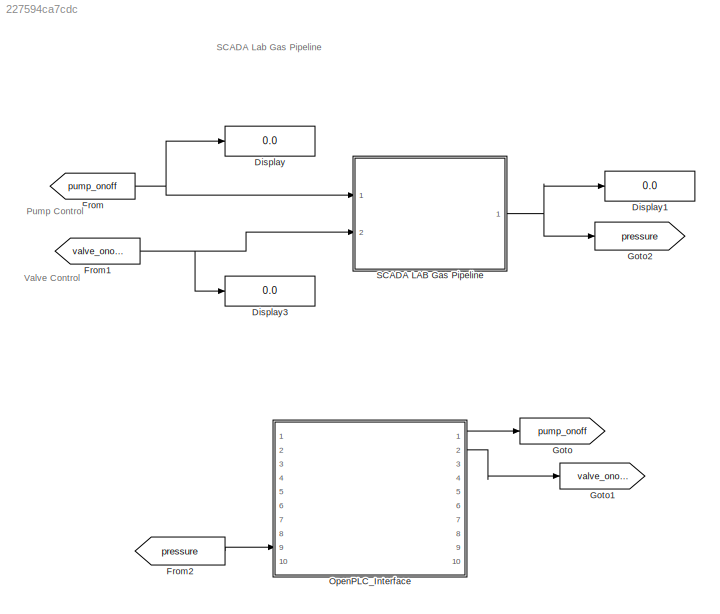
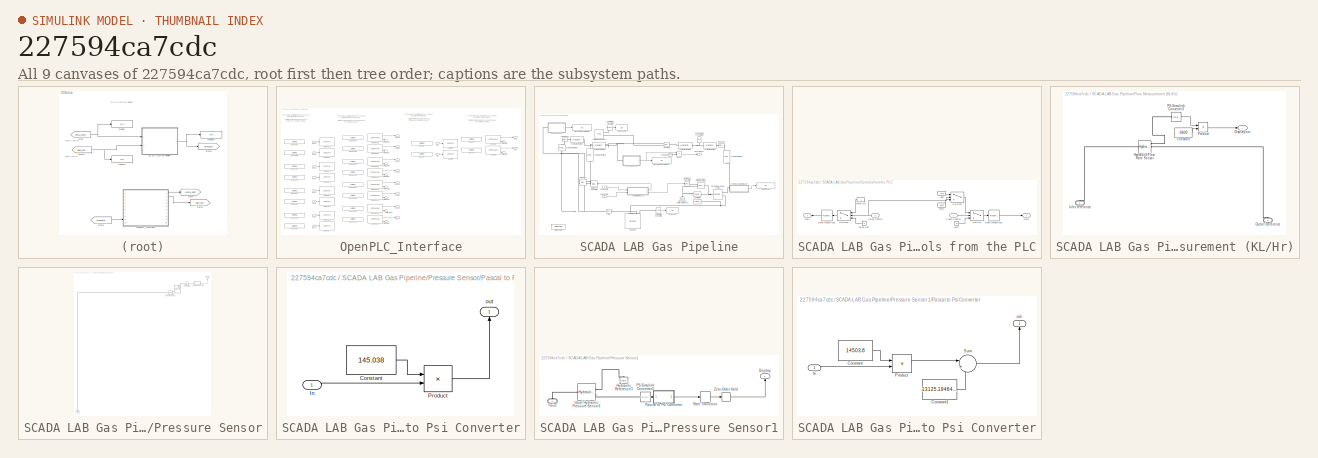
[diagram: thumbnail index - all 9 canvases of the model, root first then tree order]
MODEL slx_227594ca7cdc
KIND model
CONFIG AbsTol = auto
CONFIG EnableMultiTasking = on
CONFIG FixedStep = auto
CONFIG MaxStep = auto
CONFIG MinStep = auto
CONFIG RelTol = 1e-3
CONFIG SampleTimeConstraint = Unconstrained
CONFIG Solver = FixedStepAuto
CONFIG SolverName = FixedStepAuto
CONFIG StartTime = 0.0
CONFIG StopTime = inf
WORKSPACE source: mxarray member
WORKSPACE PLC_IP_Address = 'localhost'
BLOCK [Display] Display
  Decimation = 1
  Ports = [1]
BLOCK [Display] Display1
  Decimation = 1
  Ports = [1]
BLOCK [Display] Display3
  Decimation = 1
  Ports = [1]
BLOCK [From] From
  GotoTag = pump_onoff
BLOCK [From] From1
  GotoTag = valve_onoff
BLOCK [From] From2
  GotoTag = pressure
BLOCK [Goto] Goto
  GotoTag = pump_onoff
BLOCK [Goto] Goto1
  GotoTag = valve_onoff
BLOCK [Goto] Goto2
  GotoTag = pressure
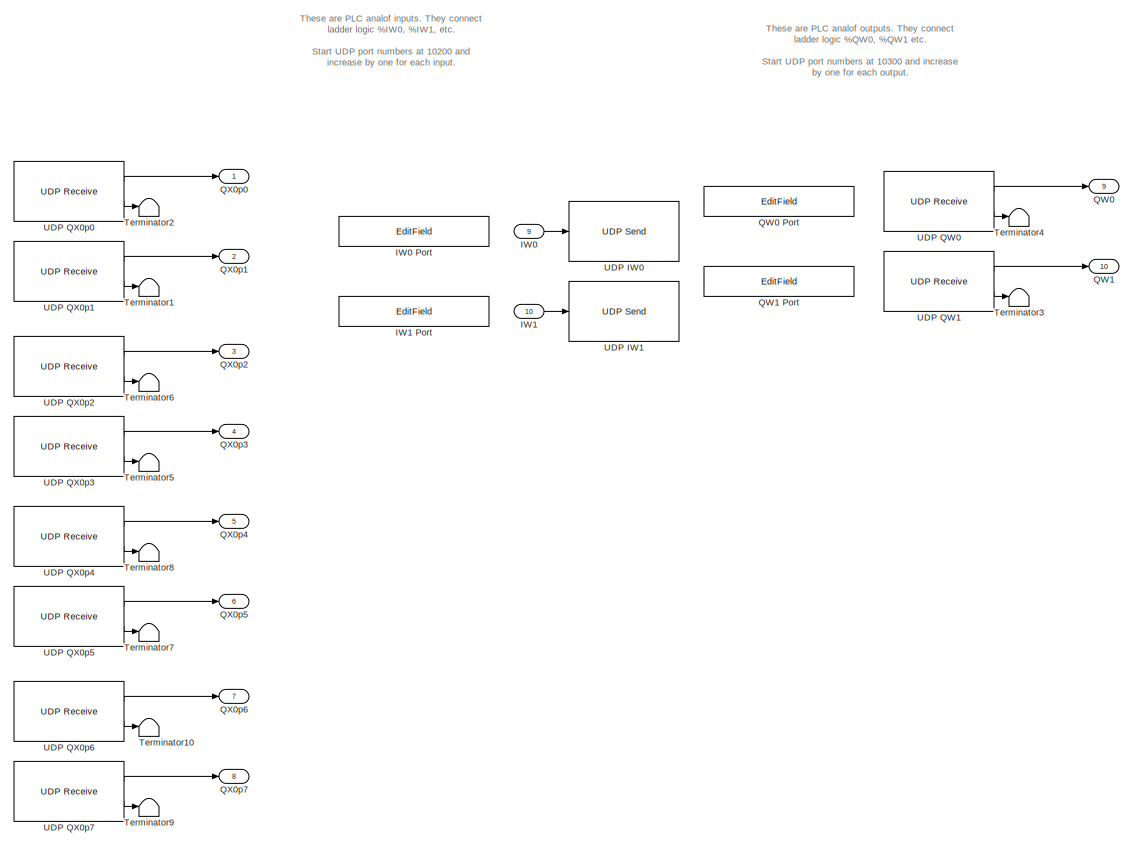
[diagram: OpenPLC_Interface - part 1/2, right side, full height]
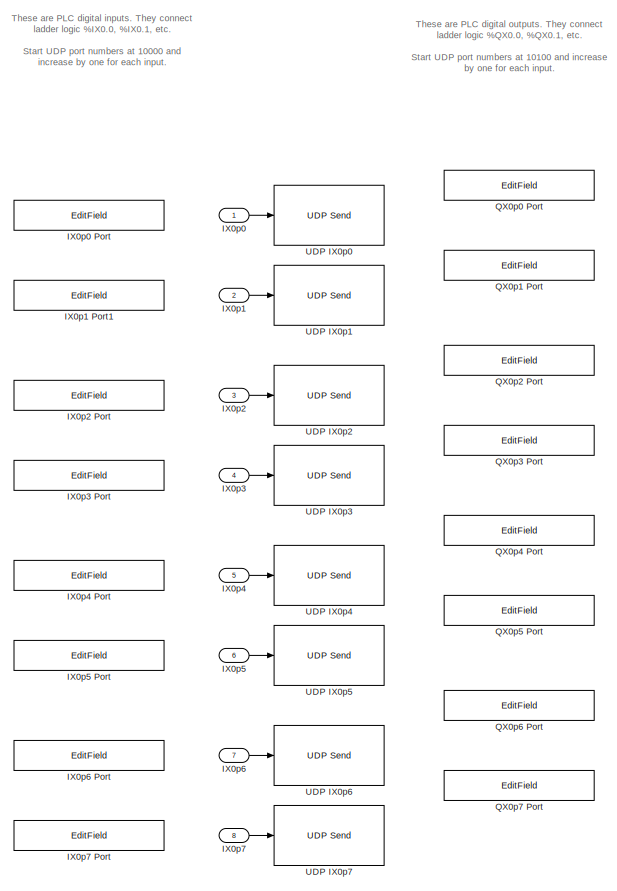
[diagram: OpenPLC_Interface - part 2/2, left side, full height]
BLOCK [SubSystem] OpenPLC_Interface
  Ports = [10, 10]
  RequestExecContextInheritance = off
BLOCK [Inport] OpenPLC_Interface/IW0
  IconDisplay = Port number
  Port = 9
BLOCK [EditField] OpenPLC_Interface/IW0 Port
  Alignment = Center
  LabelPosition = Hide
  ShowInitialText = on
BLOCK [Inport] OpenPLC_Interface/IW1
  IconDisplay = Port number
  Port = 10
BLOCK [EditField] OpenPLC_Interface/IW1 Port
  Alignment = Center
  LabelPosition = Hide
  ShowInitialText = on
BLOCK [Inport] OpenPLC_Interface/IX0p0 
  IconDisplay = Port number
BLOCK [EditField] OpenPLC_Interface/IX0p0 Port
  Alignment = Center
  LabelPosition = Hide
  ShowInitialText = on
BLOCK [Inport] OpenPLC_Interface/IX0p1
  IconDisplay = Port number
  Port = 2
BLOCK [EditField] OpenPLC_Interface/IX0p1 Port1
  Alignment = Center
  LabelPosition = Hide
  ShowInitialText = on
BLOCK [Inport] OpenPLC_Interface/IX0p2
  IconDisplay = Port number
  Port = 3
BLOCK [EditField] OpenPLC_Interface/IX0p2 Port
  Alignment = Center
  LabelPosition = Hide
  ShowInitialText = on
BLOCK [Inport] OpenPLC_Interface/IX0p3
  IconDisplay = Port number
  Port = 4
BLOCK [EditField] OpenPLC_Interface/IX0p3 Port
  Alignment = Center
  LabelPosition = Hide
  ShowInitialText = on
BLOCK [Inport] OpenPLC_Interface/IX0p4
  IconDisplay = Port number
  Port = 5
BLOCK [EditField] OpenPLC_Interface/IX0p4 Port
  Alignment = Center
  LabelPosition = Hide
  ShowInitialText = on
BLOCK [Inport] OpenPLC_Interface/IX0p5
  IconDisplay = Port number
  Port = 6
BLOCK [EditField] OpenPLC_Interface/IX0p5 Port
  Alignment = Center
  LabelPosition = Hide
  ShowInitialText = on
BLOCK [Inport] OpenPLC_Interface/IX0p6
  IconDisplay = Port number
  Port = 7
BLOCK [EditField] OpenPLC_Interface/IX0p6 Port
  Alignment = Center
  LabelPosition = Hide
  ShowInitialText = on
BLOCK [Inport] OpenPLC_Interface/IX0p7
  IconDisplay = Port number
  Port = 8
BLOCK [EditField] OpenPLC_Interface/IX0p7 Port
  Alignment = Center
  LabelPosition = Hide
  ShowInitialText = on
BLOCK [Outport] OpenPLC_Interface/QW0
  IconDisplay = Port number
  Port = 9
BLOCK [EditField] OpenPLC_Interface/QW0 Port
  Alignment = Center
  LabelPosition = Hide
  ShowInitialText = on
BLOCK [Outport] OpenPLC_Interface/QW1
  IconDisplay = Port number
  Port = 10
BLOCK [EditField] OpenPLC_Interface/QW1 Port
  Alignment = Center
  LabelPosition = Hide
  ShowInitialText = on
BLOCK [Outport] OpenPLC_Interface/QX0p0
  IconDisplay = Port number
BLOCK [EditField] OpenPLC_Interface/QX0p0 Port
  Alignment = Center
  LabelPosition = Hide
  ShowInitialText = on
BLOCK [Outport] OpenPLC_Interface/QX0p1
  IconDisplay = Port number
  Port = 2
BLOCK [EditField] OpenPLC_Interface/QX0p1 Port
  Alignment = Center
  LabelPosition = Hide
  ShowInitialText = on
BLOCK [Outport] OpenPLC_Interface/QX0p2
  IconDisplay = Port number
  Port = 3
BLOCK [EditField] OpenPLC_Interface/QX0p2 Port
  Alignment = Center
  LabelPosition = Hide
  ShowInitialText = on
BLOCK [Outport] OpenPLC_Interface/QX0p3
  IconDisplay = Port number
  Port = 4
BLOCK [EditField] OpenPLC_Interface/QX0p3 Port
  Alignment = Center
  LabelPosition = Hide
  ShowInitialText = on
BLOCK [Outport] OpenPLC_Interface/QX0p4
  IconDisplay = Port number
  Port = 5
BLOCK [EditField] OpenPLC_Interface/QX0p4 Port
  Alignment = Center
  LabelPosition = Hide
  ShowInitialText = on
BLOCK [Outport] OpenPLC_Interface/QX0p5
  IconDisplay = Port number
  Port = 6
BLOCK [EditField] OpenPLC_Interface/QX0p5 Port
  Alignment = Center
  LabelPosition = Hide
  ShowInitialText = on
BLOCK [Outport] OpenPLC_Interface/QX0p6
  IconDisplay = Port number
  Port = 7
BLOCK [EditField] OpenPLC_Interface/QX0p6 Port
  Alignment = Center
  LabelPosition = Hide
  ShowInitialText = on
BLOCK [Outport] OpenPLC_Interface/QX0p7
  IconDisplay = Port number
  Port = 8
BLOCK [EditField] OpenPLC_Interface/QX0p7 Port
  Alignment = Center
  LabelPosition = Hide
  ShowInitialText = on
BLOCK [Terminator] OpenPLC_Interface/Terminator1
BLOCK [Terminator] OpenPLC_Interface/Terminator10
BLOCK [Terminator] OpenPLC_Interface/Terminator2
BLOCK [Terminator] OpenPLC_Interface/Terminator3
BLOCK [Terminator] OpenPLC_Interface/Terminator4
BLOCK [Terminator] OpenPLC_Interface/Terminator5
BLOCK [Terminator] OpenPLC_Interface/Terminator6
BLOCK [Terminator] OpenPLC_Interface/Terminator7
BLOCK [Terminator] OpenPLC_Interface/Terminator8
BLOCK [Terminator] OpenPLC_Interface/Terminator9
BLOCK [Reference] OpenPLC_Interface/UDP IW0  REF=dspnetwork/UDP Send
  Ports = [1]
  SourceBlock = dspnetwork/UDP Send
  SourceProductBaseCode = DS
  SourceProductName = DSP System Toolbox
  SourceType = UDP Send
BLOCK [Reference] OpenPLC_Interface/UDP IW1  REF=dspnetwork/UDP Send
  Ports = [1]
  SourceBlock = dspnetwork/UDP Send
  SourceProductBaseCode = DS
  SourceProductName = DSP System Toolbox
  SourceType = UDP Send
BLOCK [Reference] OpenPLC_Interface/UDP IX0p0  REF=dspnetwork/UDP Send
  Ports = [1]
  SourceBlock = dspnetwork/UDP Send
  SourceProductBaseCode = DS
  SourceProductName = DSP System Toolbox
  SourceType = UDP Send
BLOCK [Reference] OpenPLC_Interface/UDP IX0p1  REF=dspnetwork/UDP Send
  Ports = [1]
  SourceBlock = dspnetwork/UDP Send
  SourceProductBaseCode = DS
  SourceProductName = DSP System Toolbox
  SourceType = UDP Send
BLOCK [Reference] OpenPLC_Interface/UDP IX0p2  REF=dspnetwork/UDP Send
  Ports = [1]
  SourceBlock = dspnetwork/UDP Send
  SourceProductBaseCode = DS
  SourceProductName = DSP System Toolbox
  SourceType = UDP Send
BLOCK [Reference] OpenPLC_Interface/UDP IX0p3  REF=dspnetwork/UDP Send
  Ports = [1]
  SourceBlock = dspnetwork/UDP Send
  SourceProductBaseCode = DS
  SourceProductName = DSP System Toolbox
  SourceType = UDP Send
BLOCK [Reference] OpenPLC_Interface/UDP IX0p4  REF=dspnetwork/UDP Send
  Ports = [1]
  SourceBlock = dspnetwork/UDP Send
  SourceProductBaseCode = DS
  SourceProductName = DSP System Toolbox
  SourceType = UDP Send
BLOCK [Reference] OpenPLC_Interface/UDP IX0p5  REF=dspnetwork/UDP Send
  Ports = [1]
  SourceBlock = dspnetwork/UDP Send
  SourceProductBaseCode = DS
  SourceProductName = DSP System Toolbox
  SourceType = UDP Send
BLOCK [Reference] OpenPLC_Interface/UDP IX0p6  REF=dspnetwork/UDP Send
  Ports = [1]
  SourceBlock = dspnetwork/UDP Send
  SourceProductBaseCode = DS
  SourceProductName = DSP System Toolbox
  SourceType = UDP Send
BLOCK [Reference] OpenPLC_Interface/UDP IX0p7  REF=dspnetwork/UDP Send
  Ports = [1]
  SourceBlock = dspnetwork/UDP Send
  SourceProductBaseCode = DS
  SourceProductName = DSP System Toolbox
  SourceType = UDP Send
BLOCK [Reference] OpenPLC_Interface/UDP QW0  REF=dspnetwork/UDP Receive
  Ports = [0, 2]
  SourceBlock = dspnetwork/UDP Receive
  SourceProductBaseCode = DS
  SourceProductName = DSP System Toolbox
  SourceType = UDP Receive
BLOCK [Reference] OpenPLC_Interface/UDP QW1  REF=dspnetwork/UDP Receive
  Ports = [0, 2]
  SourceBlock = dspnetwork/UDP Receive
  SourceProductBaseCode = DS
  SourceProductName = DSP System Toolbox
  SourceType = UDP Receive
BLOCK [Reference] OpenPLC_Interface/UDP QX0p0  REF=dspnetwork/UDP Receive
  Ports = [0, 2]
  SourceBlock = dspnetwork/UDP Receive
  SourceProductBaseCode = DS
  SourceProductName = DSP System Toolbox
  SourceType = UDP Receive
BLOCK [Reference] OpenPLC_Interface/UDP QX0p1  REF=dspnetwork/UDP Receive
  Ports = [0, 2]
  SourceBlock = dspnetwork/UDP Receive
  SourceProductBaseCode = DS
  SourceProductName = DSP System Toolbox
  SourceType = UDP Receive
BLOCK [Reference] OpenPLC_Interface/UDP QX0p2  REF=dspnetwork/UDP Receive
  Ports = [0, 2]
  SourceBlock = dspnetwork/UDP Receive
  SourceProductBaseCode = DS
  SourceProductName = DSP System Toolbox
  SourceType = UDP Receive
BLOCK [Reference] OpenPLC_Interface/UDP QX0p3  REF=dspnetwork/UDP Receive
  Ports = [0, 2]
  SourceBlock = dspnetwork/UDP Receive
  SourceProductBaseCode = DS
  SourceProductName = DSP System Toolbox
  SourceType = UDP Receive
BLOCK [Reference] OpenPLC_Interface/UDP QX0p4  REF=dspnetwork/UDP Receive
  Ports = [0, 2]
  SourceBlock = dspnetwork/UDP Receive
  SourceProductBaseCode = DS
  SourceProductName = DSP System Toolbox
  SourceType = UDP Receive
BLOCK [Reference] OpenPLC_Interface/UDP QX0p5  REF=dspnetwork/UDP Receive
  Ports = [0, 2]
  SourceBlock = dspnetwork/UDP Receive
  SourceProductBaseCode = DS
  SourceProductName = DSP System Toolbox
  SourceType = UDP Receive
BLOCK [Reference] OpenPLC_Interface/UDP QX0p6  REF=dspnetwork/UDP Receive
  Ports = [0, 2]
  SourceBlock = dspnetwork/UDP Receive
  SourceProductBaseCode = DS
  SourceProductName = DSP System Toolbox
  SourceType = UDP Receive
BLOCK [Reference] OpenPLC_Interface/UDP QX0p7  REF=dspnetwork/UDP Receive
  Ports = [0, 2]
  SourceBlock = dspnetwork/UDP Receive
  SourceProductBaseCode = DS
  SourceProductName = DSP System Toolbox
  SourceType = UDP Receive
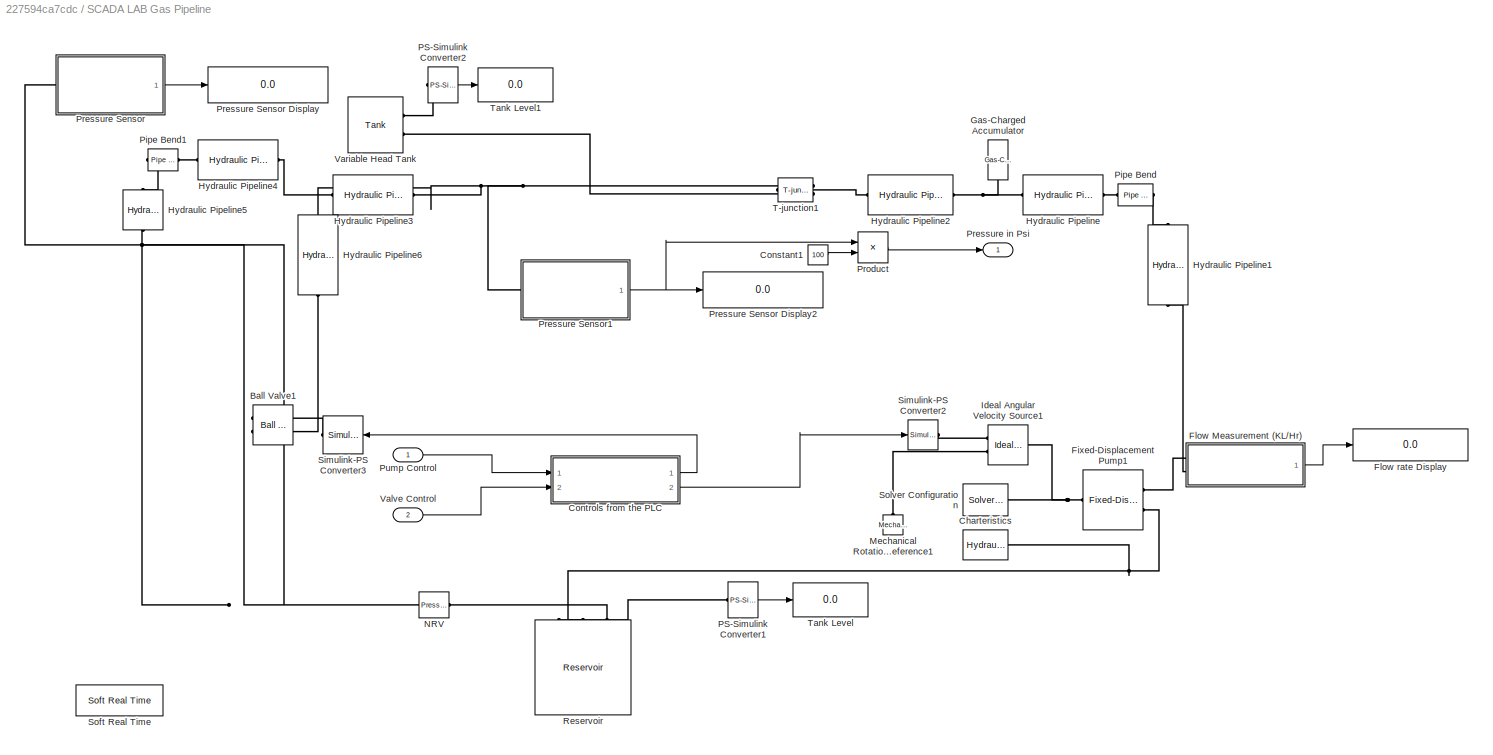
BLOCK [SubSystem] SCADA LAB Gas Pipeline
  Ports = [2, 1]
  RequestExecContextInheritance = off
BLOCK [Reference] SCADA LAB Gas Pipeline/Ball Valve1  REF=sh_lib/Valves/Flow Control Valves/Ball Valve
  Ports = [0, 0, 0, 0, 0, 2, 1]
  SourceBlock = sh_lib/Valves/Flow Control Valves/Ball Valve
  SourceProductBaseCode = SH
  SourceProductName = Simscape Fluids
  SourceType = Ball Valve
BLOCK [Reference] SCADA LAB Gas Pipeline/Charteristics  REF=sh_lib/Hydraulic Utilities/Hydraulic Fluid
  Ports = [0, 0, 0, 0, 0, 0, 1]
  SourceBlock = sh_lib/Hydraulic Utilities/Hydraulic Fluid
  SourceProductBaseCode = SH
  SourceProductName = Simscape Fluids
  SourceType = Hydraulic Fluid
BLOCK [Constant] SCADA LAB Gas Pipeline/Constant1
  Value = 100
BLOCK [SubSystem] SCADA LAB Gas Pipeline/Controls from the PLC
  Ports = [2, 2]
  RequestExecContextInheritance = off
BLOCK [Outport] SCADA LAB Gas Pipeline/Controls from the PLC/Out1
  IconDisplay = Port number
BLOCK [Outport] SCADA LAB Gas Pipeline/Controls from the PLC/Out2
  IconDisplay = Port number
  Port = 2
BLOCK [Inport] SCADA LAB Gas Pipeline/Controls from the PLC/Pump Control
  IconDisplay = Port number
BLOCK [RateTransition] SCADA LAB Gas Pipeline/Controls from the PLC/Rate Transition1
BLOCK [RateTransition] SCADA LAB Gas Pipeline/Controls from the PLC/Rate Transition2
BLOCK [Switch] SCADA LAB Gas Pipeline/Controls from the PLC/Switch
  InputSameDT = off
  SaturateOnIntegerOverflow = off
  Threshold = 1
BLOCK [Switch] SCADA LAB Gas Pipeline/Controls from the PLC/Switch1
  InputSameDT = off
  SaturateOnIntegerOverflow = off
  Threshold = 1
BLOCK [Switch] SCADA LAB Gas Pipeline/Controls from the PLC/Switch2
  InputSameDT = off
  SaturateOnIntegerOverflow = off
  Threshold = 1
BLOCK [Inport] SCADA LAB Gas Pipeline/Controls from the PLC/Valve Control
  IconDisplay = Port number
  Port = 2
BLOCK [Constant] SCADA LAB Gas Pipeline/Controls from the PLC/rpm
  Value = 100
BLOCK [Constant] SCADA LAB Gas Pipeline/Controls from the PLC/rpm1
  Value = 0
BLOCK [Constant] SCADA LAB Gas Pipeline/Controls from the PLC/rpm2
  Value = 1500
BLOCK [Constant] SCADA LAB Gas Pipeline/Controls from the PLC/valve OFF
  Value = 0
BLOCK [Constant] SCADA LAB Gas Pipeline/Controls from the PLC/valve ON
BLOCK [Reference] SCADA LAB Gas Pipeline/Fixed-Displacement Pump1  REF=sh_lib/Pumps and Motors/Fixed-Displacement
Pump
  Ports = [0, 0, 0, 0, 0, 1, 2]
  SourceBlock = sh_lib/Pumps and Motors/Fixed-Displacement\nPump
  SourceProductBaseCode = SH
  SourceProductName = Simscape Fluids
  SourceType = Fixed-Displacement\nPump
BLOCK [SubSystem] SCADA LAB Gas Pipeline/Flow Measurement (KL//Hr)
  Ports = [0, 1, 0, 0, 0, 2]
  RequestExecContextInheritance = off
BLOCK [PMIOPort] SCADA LAB Gas Pipeline/Flow Measurement (KL//Hr)/ Outlet Reference
  Port = 2
  Side = Left
BLOCK [Constant] SCADA LAB Gas Pipeline/Flow Measurement (KL//Hr)/Constant
  Value = 3600
BLOCK [Outport] SCADA LAB Gas Pipeline/Flow Measurement (KL//Hr)/Display out
  IconDisplay = Port number
BLOCK [Reference] SCADA LAB Gas Pipeline/Flow Measurement (KL//Hr)/Hydraulic Flow Rate Sensor  REF=fl_lib/Hydraulic/Hydraulic Sensors/Hydraulic Flow Rate
Sensor
  Ports = [0, 0, 0, 0, 0, 1, 3]
  SourceBlock = fl_lib/Hydraulic/Hydraulic Sensors/Hydraulic Flow Rate\nSensor
  SourceProductBaseCode = SS
  SourceProductName = Simscape
  SourceType = Hydraulic Flow Rate\nSensor
BLOCK [PMIOPort] SCADA LAB Gas Pipeline/Flow Measurement (KL//Hr)/Inlet reference
  Side = Left
BLOCK [Reference] SCADA LAB Gas Pipeline/Flow Measurement (KL//Hr)/PS-Simulink Converter3  REF=nesl_utility/PS-Simulink
Converter
  Ports = [0, 1, 0, 0, 0, 1]
  SourceBlock = nesl_utility/PS-Simulink\nConverter
  SourceProductBaseCode = SS
  SourceProductName = Simscape
  SourceType = PS-Simulink\nConverter
BLOCK [Product] SCADA LAB Gas Pipeline/Flow Measurement (KL//Hr)/Product
  InputSameDT = off
  OutDataTypeStr = Inherit: Inherit via internal rule
  Ports = [2, 1]
  RndMeth = Floor
  SaturateOnIntegerOverflow = off
BLOCK [Display] SCADA LAB Gas Pipeline/Flow rate Display
  Decimation = 1
  Ports = [1]
BLOCK [Reference] SCADA LAB Gas Pipeline/Gas-Charged Accumulator  REF=sh_lib/Accumulators/Gas-Charged
Accumulator
  Ports = [0, 0, 0, 0, 0, 0, 1]
  SourceBlock = sh_lib/Accumulators/Gas-Charged\nAccumulator
  SourceProductBaseCode = SH
  SourceProductName = Simscape Fluids
  SourceType = Gas-Charged\nAccumulator
BLOCK [Reference] SCADA LAB Gas Pipeline/Hydraulic Pipeline  REF=sh_lib/Pipelines/Hydraulic Pipeline
  Ports = [0, 0, 0, 0, 0, 1, 1]
  SourceBlock = sh_lib/Pipelines/Hydraulic Pipeline
  SourceProductBaseCode = SH
  SourceProductName = Simscape Fluids
  SourceType = Hydraulic Pipeline
BLOCK [Reference] SCADA LAB Gas Pipeline/Hydraulic Pipeline1  REF=sh_lib/Pipelines/Hydraulic Pipeline
  Ports = [0, 0, 0, 0, 0, 1, 1]
  SourceBlock = sh_lib/Pipelines/Hydraulic Pipeline
  SourceProductBaseCode = SH
  SourceProductName = Simscape Fluids
  SourceType = Hydraulic Pipeline
BLOCK [Reference] SCADA LAB Gas Pipeline/Hydraulic Pipeline2  REF=sh_lib/Pipelines/Hydraulic Pipeline
  Ports = [0, 0, 0, 0, 0, 1, 1]
  SourceBlock = sh_lib/Pipelines/Hydraulic Pipeline
  SourceProductBaseCode = SH
  SourceProductName = Simscape Fluids
  SourceType = Hydraulic Pipeline
BLOCK [Reference] SCADA LAB Gas Pipeline/Hydraulic Pipeline3  REF=sh_lib/Pipelines/Hydraulic Pipeline
  Ports = [0, 0, 0, 0, 0, 1, 1]
  SourceBlock = sh_lib/Pipelines/Hydraulic Pipeline
  SourceProductBaseCode = SH
  SourceProductName = Simscape Fluids
  SourceType = Hydraulic Pipeline
BLOCK [Reference] SCADA LAB Gas Pipeline/Hydraulic Pipeline4  REF=sh_lib/Pipelines/Hydraulic Pipeline
  Ports = [0, 0, 0, 0, 0, 1, 1]
  SourceBlock = sh_lib/Pipelines/Hydraulic Pipeline
  SourceProductBaseCode = SH
  SourceProductName = Simscape Fluids
  SourceType = Hydraulic Pipeline
BLOCK [Reference] SCADA LAB Gas Pipeline/Hydraulic Pipeline5  REF=sh_lib/Pipelines/Hydraulic Pipeline
  Ports = [0, 0, 0, 0, 0, 1, 1]
  SourceBlock = sh_lib/Pipelines/Hydraulic Pipeline
  SourceProductBaseCode = SH
  SourceProductName = Simscape Fluids
  SourceType = Hydraulic Pipeline
BLOCK [Reference] SCADA LAB Gas Pipeline/Hydraulic Pipeline6  REF=sh_lib/Pipelines/Hydraulic Pipeline
  Ports = [0, 0, 0, 0, 0, 1, 1]
  SourceBlock = sh_lib/Pipelines/Hydraulic Pipeline
  SourceProductBaseCode = SH
  SourceProductName = Simscape Fluids
  SourceType = Hydraulic Pipeline
BLOCK [Reference] SCADA LAB Gas Pipeline/Ideal Angular Velocity Source1  REF=fl_lib/Mechanical/Mechanical Sources/Ideal Angular
Velocity Source
  Ports = [0, 0, 0, 0, 0, 1, 2]
  SourceBlock = fl_lib/Mechanical/Mechanical Sources/Ideal Angular\nVelocity Source
  SourceProductBaseCode = SS
  SourceProductName = Simscape
  SourceType = Ideal Angular\nVelocity Source
BLOCK [Reference] SCADA LAB Gas Pipeline/Mechanical Rotational Reference1  REF=fl_lib/Mechanical/Rotational Elements/Mechanical
Rotational Reference
  Ports = [0, 0, 0, 0, 0, 1]
  SourceBlock = fl_lib/Mechanical/Rotational Elements/Mechanical\nRotational Reference
  SourceProductBaseCode = SS
  SourceProductName = Simscape
  SourceType = Mechanical\nRotational Reference
BLOCK [Reference] SCADA LAB Gas Pipeline/NRV  REF=sh_lib/Valves/Pressure Control
Valves/Pressure Relief
Valve
  Ports = [0, 0, 0, 0, 0, 1, 1]
  SourceBlock = sh_lib/Valves/Pressure Control\nValves/Pressure Relief\nValve
  SourceProductBaseCode = SH
  SourceProductName = Simscape Fluids
  SourceType = Pressure Relief\nValve
BLOCK [Reference] SCADA LAB Gas Pipeline/PS-Simulink Converter1  REF=nesl_utility/PS-Simulink
Converter
  Ports = [0, 1, 0, 0, 0, 1]
  SourceBlock = nesl_utility/PS-Simulink\nConverter
  SourceProductBaseCode = SS
  SourceProductName = Simscape
  SourceType = PS-Simulink\nConverter
BLOCK [Reference] SCADA LAB Gas Pipeline/PS-Simulink Converter2  REF=nesl_utility/PS-Simulink
Converter
  Ports = [0, 1, 0, 0, 0, 1]
  SourceBlock = nesl_utility/PS-Simulink\nConverter
  SourceProductBaseCode = SS
  SourceProductName = Simscape
  SourceType = PS-Simulink\nConverter
BLOCK [Reference] SCADA LAB Gas Pipeline/Pipe Bend  REF=sh_lib/Local Hydraulic
Resistances/Pipe Bend
  Ports = [0, 0, 0, 0, 0, 1, 1]
  SourceBlock = sh_lib/Local Hydraulic\nResistances/Pipe Bend
  SourceProductBaseCode = SH
  SourceProductName = Simscape Fluids
  SourceType = Pipe Bend
BLOCK [Reference] SCADA LAB Gas Pipeline/Pipe Bend1  REF=sh_lib/Local Hydraulic
Resistances/Pipe Bend
  Ports = [0, 0, 0, 0, 0, 1, 1]
  SourceBlock = sh_lib/Local Hydraulic\nResistances/Pipe Bend
  SourceProductBaseCode = SH
  SourceProductName = Simscape Fluids
  SourceType = Pipe Bend
BLOCK [SubSystem] SCADA LAB Gas Pipeline/Pressure Sensor
  Ports = [0, 1, 0, 0, 0, 1]
  RequestExecContextInheritance = off
BLOCK [Display] SCADA LAB Gas Pipeline/Pressure Sensor Display
  Decimation = 1
  Ports = [1]
BLOCK [Display] SCADA LAB Gas Pipeline/Pressure Sensor Display2
  Decimation = 1
  Ports = [1]
BLOCK [Outport] SCADA LAB Gas Pipeline/Pressure Sensor/ Display
  IconDisplay = Port number
BLOCK [Reference] SCADA LAB Gas Pipeline/Pressure Sensor/Hydraulic Reference3  REF=fl_lib/Hydraulic/Hydraulic Elements/Hydraulic Reference
  Ports = [0, 0, 0, 0, 0, 1]
  SourceBlock = fl_lib/Hydraulic/Hydraulic Elements/Hydraulic Reference
  SourceProductBaseCode = SS
  SourceProductName = Simscape
  SourceType = Hydraulic Reference
BLOCK [Reference] SCADA LAB Gas Pipeline/Pressure Sensor/Ideal Hydraulic Pressure Sensor3  REF=fl_lib/Hydraulic/Hydraulic Sensors/Hydraulic Pressure
Sensor
  Ports = [0, 0, 0, 0, 0, 1, 2]
  SourceBlock = fl_lib/Hydraulic/Hydraulic Sensors/Hydraulic Pressure\nSensor
  SourceProductBaseCode = SS
  SourceProductName = Simscape
  SourceType = Hydraulic Pressure\nSensor
BLOCK [Reference] SCADA LAB Gas Pipeline/Pressure Sensor/PS-Simulink Converter3  REF=nesl_utility/PS-Simulink
Converter
  Ports = [0, 1, 0, 0, 0, 1]
  SourceBlock = nesl_utility/PS-Simulink\nConverter
  SourceProductBaseCode = SS
  SourceProductName = Simscape
  SourceType = PS-Simulink\nConverter
BLOCK [SubSystem] SCADA LAB Gas Pipeline/Pressure Sensor/Pascal to Psi Converter
  Ports = [1, 1]
  RequestExecContextInheritance = off
BLOCK [Constant] SCADA LAB Gas Pipeline/Pressure Sensor/Pascal to Psi Converter/Constant
  Value = 145.038
BLOCK [Inport] SCADA LAB Gas Pipeline/Pressure Sensor/Pascal to Psi Converter/In
  IconDisplay = Port number
BLOCK [Product] SCADA LAB Gas Pipeline/Pressure Sensor/Pascal to Psi Converter/Product
  InputSameDT = off
  OutDataTypeStr = Inherit: Inherit via internal rule
  Ports = [2, 1]
  RndMeth = Floor
  SaturateOnIntegerOverflow = off
BLOCK [Outport] SCADA LAB Gas Pipeline/Pressure Sensor/Pascal to Psi Converter/out
  IconDisplay = Port number
BLOCK [PMIOPort] SCADA LAB Gas Pipeline/Pressure Sensor/Point
  Side = Left
BLOCK [SubSystem] SCADA LAB Gas Pipeline/Pressure Sensor1
  Ports = [0, 1, 0, 0, 0, 1]
  RequestExecContextInheritance = off
BLOCK [Outport] SCADA LAB Gas Pipeline/Pressure Sensor1/ Display
  IconDisplay = Port number
BLOCK [Reference] SCADA LAB Gas Pipeline/Pressure Sensor1/Hydraulic Reference3  REF=fl_lib/Hydraulic/Hydraulic Elements/Hydraulic Reference
  Ports = [0, 0, 0, 0, 0, 1]
  SourceBlock = fl_lib/Hydraulic/Hydraulic Elements/Hydraulic Reference
  SourceProductBaseCode = SS
  SourceProductName = Simscape
  SourceType = Hydraulic Reference
BLOCK [Reference] SCADA LAB Gas Pipeline/Pressure Sensor1/Ideal Hydraulic Pressure Sensor3  REF=fl_lib/Hydraulic/Hydraulic Sensors/Hydraulic Pressure
Sensor
  Ports = [0, 0, 0, 0, 0, 1, 2]
  SourceBlock = fl_lib/Hydraulic/Hydraulic Sensors/Hydraulic Pressure\nSensor
  SourceProductBaseCode = SS
  SourceProductName = Simscape
  SourceType = Hydraulic Pressure\nSensor
BLOCK [Reference] SCADA LAB Gas Pipeline/Pressure Sensor1/PS-Simulink Converter3  REF=nesl_utility/PS-Simulink
Converter
  Ports = [0, 1, 0, 0, 0, 1]
  SourceBlock = nesl_utility/PS-Simulink\nConverter
  SourceProductBaseCode = SS
  SourceProductName = Simscape
  SourceType = PS-Simulink\nConverter
BLOCK [SubSystem] SCADA LAB Gas Pipeline/Pressure Sensor1/Pascal to Psi Converter
  Ports = [1, 1]
  RequestExecContextInheritance = off
BLOCK [Constant] SCADA LAB Gas Pipeline/Pressure Sensor1/Pascal to Psi Converter/Constant
  Value = 14503.8
BLOCK [Constant] SCADA LAB Gas Pipeline/Pressure Sensor1/Pascal to Psi Converter/Constant1
  Value = 13125.1946444
BLOCK [Inport] SCADA LAB Gas Pipeline/Pressure Sensor1/Pascal to Psi Converter/In
  IconDisplay = Port number
BLOCK [Product] SCADA LAB Gas Pipeline/Pressure Sensor1/Pascal to Psi Converter/Product
  InputSameDT = off
  OutDataTypeStr = Inherit: Inherit via internal rule
  Ports = [2, 1]
  RndMeth = Floor
  SaturateOnIntegerOverflow = off
BLOCK [Sum] SCADA LAB Gas Pipeline/Pressure Sensor1/Pascal to Psi Converter/Sum
  IconShape = round
  InputSameDT = off
  Inputs = |+-
  OutDataTypeStr = Inherit: Inherit via internal rule
  Ports = [2, 1]
  SaturateOnIntegerOverflow = off
BLOCK [Outport] SCADA LAB Gas Pipeline/Pressure Sensor1/Pascal to Psi Converter/out
  IconDisplay = Port number
BLOCK [PMIOPort] SCADA LAB Gas Pipeline/Pressure Sensor1/Point
  Side = Left
BLOCK [RateTransition] SCADA LAB Gas Pipeline/Pressure Sensor1/Rate Transition
BLOCK [ZeroOrderHold] SCADA LAB Gas Pipeline/Pressure Sensor1/Zero-Order Hold
  SampleTime = 0.1
BLOCK [Outport] SCADA LAB Gas Pipeline/Pressure in Psi
  IconDisplay = Port number
BLOCK [Product] SCADA LAB Gas Pipeline/Product
  InputSameDT = off
  OutDataTypeStr = Inherit: Inherit via internal rule
  Ports = [2, 1]
  RndMeth = Floor
  SaturateOnIntegerOverflow = off
BLOCK [Inport] SCADA LAB Gas Pipeline/Pump Control
  IconDisplay = Port number
BLOCK [Reference] SCADA LAB Gas Pipeline/Reservoir  REF=sh_lib/Hydraulic Utilities/Reservoir
  Ports = [0, 0, 0, 0, 0, 3]
  SourceBlock = sh_lib/Hydraulic Utilities/Reservoir
  SourceProductBaseCode = SH
  SourceProductName = Simscape Fluids
  SourceType = Reservoir
BLOCK [Reference] SCADA LAB Gas Pipeline/Simulink-PS Converter2  REF=nesl_utility/Simulink-PS
Converter
  Ports = [1, 0, 0, 0, 0, 0, 1]
  SourceBlock = nesl_utility/Simulink-PS\nConverter
  SourceProductBaseCode = SS
  SourceProductName = Simscape
  SourceType = Simulink-PS\nConverter
BLOCK [Reference] SCADA LAB Gas Pipeline/Simulink-PS Converter3  REF=nesl_utility/Simulink-PS
Converter
  Ports = [1, 0, 0, 0, 0, 0, 1]
  SourceBlock = nesl_utility/Simulink-PS\nConverter
  SourceProductBaseCode = SS
  SourceProductName = Simscape
  SourceType = Simulink-PS\nConverter
BLOCK [Reference] SCADA LAB Gas Pipeline/Soft Real Time  REF=utility/Soft Real Time  (lib defined in slx_8818c3a16fdf)
  Ports = []
  SourceBlock = utility/Soft Real Time
  SourceProductName = Soft Real Time Lib
BLOCK [Reference] SCADA LAB Gas Pipeline/Solver Configuration  REF=nesl_utility/Solver
Configuration
  Ports = [0, 0, 0, 0, 0, 0, 1]
  SourceBlock = nesl_utility/Solver\nConfiguration
  SourceProductBaseCode = SS
  SourceProductName = Simscape
  SourceType = Solver\nConfiguration
BLOCK [Reference] SCADA LAB Gas Pipeline/T-junction1  REF=sh_lib/Local Hydraulic
Resistances/T-junction
  Ports = [0, 0, 0, 0, 0, 2, 1]
  SourceBlock = sh_lib/Local Hydraulic\nResistances/T-junction
  SourceProductBaseCode = SH
  SourceProductName = Simscape Fluids
  SourceType = T-junction
BLOCK [Display] SCADA LAB Gas Pipeline/Tank Level
  Decimation = 1
  Ports = [1]
BLOCK [Display] SCADA LAB Gas Pipeline/Tank Level1
  Decimation = 1
  Ports = [1]
BLOCK [Inport] SCADA LAB Gas Pipeline/Valve Control
  IconDisplay = Port number
  Port = 2
BLOCK [Reference] SCADA LAB Gas Pipeline/Variable Head Tank  REF=sh_lib/Low-Pressure Blocks/Tank
  Ports = [0, 0, 0, 0, 0, 0, 2]
  SourceBlock = sh_lib/Low-Pressure Blocks/Tank
  SourceProductBaseCode = SH
  SourceProductName = Simscape Fluids
  SourceType = Tank
ANNOTATION (root): SCADA Lab Gas Pipeline
ANNOTATION (root): Pump Control
ANNOTATION (root): Valve Control
ANNOTATION OpenPLC_Interface: These are PLC analof inputs. They connect ladder logic %IW0, %IW1, etc. Start UDP port numbers at 10200 and increase by one for each input. Update model variable PLC_IP_Address to set PLC ip address.
ANNOTATION OpenPLC_Interface: These are PLC analof outputs. They connect ladder logic %QW0, %QW1 etc. Start UDP port numbers at 10300 and increase by one for each output.
ANNOTATION OpenPLC_Interface: These are PLC digital inputs. They connect ladder logic %IX0.0, %IX0.1, etc. Start UDP port numbers at 10000 and increase by one for each input. Update model variable PLC_IP_Address to set PLC ip address.
ANNOTATION OpenPLC_Interface: These are PLC digital outputs. They connect ladder logic %QX0.0, %QX0.1, etc. Start UDP port numbers at 10100 and increase by one for each input.
NET From1:1 -> Display3:1, SCADA LAB Gas Pipeline:2
LINE From2:1 -> OpenPLC_Interface:9
NET From:1 -> Display:1, SCADA LAB Gas Pipeline:1
LINE OpenPLC_Interface/IW0:1 -> OpenPLC_Interface/UDP IW0:1
LINE OpenPLC_Interface/IW1:1 -> OpenPLC_Interface/UDP IW1:1
LINE OpenPLC_Interface/IX0p0 :1 -> OpenPLC_Interface/UDP IX0p0:1
LINE OpenPLC_Interface/IX0p1:1 -> OpenPLC_Interface/UDP IX0p1:1
LINE OpenPLC_Interface/IX0p2:1 -> OpenPLC_Interface/UDP IX0p2:1
LINE OpenPLC_Interface/IX0p3:1 -> OpenPLC_Interface/UDP IX0p3:1
LINE OpenPLC_Interface/IX0p4:1 -> OpenPLC_Interface/UDP IX0p4:1
LINE OpenPLC_Interface/IX0p5:1 -> OpenPLC_Interface/UDP IX0p5:1
LINE OpenPLC_Interface/IX0p6:1 -> OpenPLC_Interface/UDP IX0p6:1
LINE OpenPLC_Interface/IX0p7:1 -> OpenPLC_Interface/UDP IX0p7:1
LINE OpenPLC_Interface/UDP QW0:1 -> OpenPLC_Interface/QW0:1
LINE OpenPLC_Interface/UDP QW0:2 -> OpenPLC_Interface/Terminator4:1
LINE OpenPLC_Interface/UDP QW1:1 -> OpenPLC_Interface/QW1:1
LINE OpenPLC_Interface/UDP QW1:2 -> OpenPLC_Interface/Terminator3:1
LINE OpenPLC_Interface/UDP QX0p0:1 -> OpenPLC_Interface/QX0p0:1
LINE OpenPLC_Interface/UDP QX0p0:2 -> OpenPLC_Interface/Terminator2:1
LINE OpenPLC_Interface/UDP QX0p1:1 -> OpenPLC_Interface/QX0p1:1
LINE OpenPLC_Interface/UDP QX0p1:2 -> OpenPLC_Interface/Terminator1:1
LINE OpenPLC_Interface/UDP QX0p2:1 -> OpenPLC_Interface/QX0p2:1
LINE OpenPLC_Interface/UDP QX0p2:2 -> OpenPLC_Interface/Terminator6:1
LINE OpenPLC_Interface/UDP QX0p3:1 -> OpenPLC_Interface/QX0p3:1
LINE OpenPLC_Interface/UDP QX0p3:2 -> OpenPLC_Interface/Terminator5:1
LINE OpenPLC_Interface/UDP QX0p4:1 -> OpenPLC_Interface/QX0p4:1
LINE OpenPLC_Interface/UDP QX0p4:2 -> OpenPLC_Interface/Terminator8:1
LINE OpenPLC_Interface/UDP QX0p5:1 -> OpenPLC_Interface/QX0p5:1
LINE OpenPLC_Interface/UDP QX0p5:2 -> OpenPLC_Interface/Terminator7:1
LINE OpenPLC_Interface/UDP QX0p6:1 -> OpenPLC_Interface/QX0p6:1
LINE OpenPLC_Interface/UDP QX0p6:2 -> OpenPLC_Interface/Terminator10:1
LINE OpenPLC_Interface/UDP QX0p7:1 -> OpenPLC_Interface/QX0p7:1
LINE OpenPLC_Interface/UDP QX0p7:2 -> OpenPLC_Interface/Terminator9:1
LINE OpenPLC_Interface:1 -> Goto:1
LINE OpenPLC_Interface:2 -> Goto1:1
LINE SCADA LAB Gas Pipeline/Constant1:1 -> SCADA LAB Gas Pipeline/Product:2
LINE SCADA LAB Gas Pipeline/Controls from the PLC/Pump Control:1 -> SCADA LAB Gas Pipeline/Controls from the PLC/Switch:2
LINE SCADA LAB Gas Pipeline/Controls from the PLC/Rate Transition1:1 -> SCADA LAB Gas Pipeline/Controls from the PLC/Out2:1
LINE SCADA LAB Gas Pipeline/Controls from the PLC/Rate Transition2:1 -> SCADA LAB Gas Pipeline/Controls from the PLC/Out1:1
LINE SCADA LAB Gas Pipeline/Controls from the PLC/Switch1:1 -> SCADA LAB Gas Pipeline/Controls from the PLC/Rate Transition2:1
LINE SCADA LAB Gas Pipeline/Controls from the PLC/Switch2:1 -> SCADA LAB Gas Pipeline/Controls from the PLC/Switch:1
LINE SCADA LAB Gas Pipeline/Controls from the PLC/Switch:1 -> SCADA LAB Gas Pipeline/Controls from the PLC/Rate Transition1:1
NET SCADA LAB Gas Pipeline/Controls from the PLC/Valve Control:1 -> SCADA LAB Gas Pipeline/Controls from the PLC/Switch1:2, SCADA LAB Gas Pipeline/Controls from the PLC/Switch2:2
LINE SCADA LAB Gas Pipeline/Controls from the PLC/rpm1:1 -> SCADA LAB Gas Pipeline/Controls from the PLC/Switch:3
LINE SCADA LAB Gas Pipeline/Controls from the PLC/rpm2:1 -> SCADA LAB Gas Pipeline/Controls from the PLC/Switch2:3
LINE SCADA LAB Gas Pipeline/Controls from the PLC/rpm:1 -> SCADA LAB Gas Pipeline/Controls from the PLC/Switch2:1
LINE SCADA LAB Gas Pipeline/Controls from the PLC/valve OFF:1 -> SCADA LAB Gas Pipeline/Controls from the PLC/Switch1:3
LINE SCADA LAB Gas Pipeline/Controls from the PLC/valve ON:1 -> SCADA LAB Gas Pipeline/Controls from the PLC/Switch1:1
LINE SCADA LAB Gas Pipeline/Controls from the PLC:1 -> SCADA LAB Gas Pipeline/Simulink-PS Converter3:1
LINE SCADA LAB Gas Pipeline/Controls from the PLC:2 -> SCADA LAB Gas Pipeline/Simulink-PS Converter2:1
LINE SCADA LAB Gas Pipeline/Flow Measurement (KL//Hr)/Constant:1 -> SCADA LAB Gas Pipeline/Flow Measurement (KL//Hr)/Product:2
LINE SCADA LAB Gas Pipeline/Flow Measurement (KL//Hr)/PS-Simulink Converter3:1 -> SCADA LAB Gas Pipeline/Flow Measurement (KL//Hr)/Product:1
LINE SCADA LAB Gas Pipeline/Flow Measurement (KL//Hr)/Product:1 -> SCADA LAB Gas Pipeline/Flow Measurement (KL//Hr)/Display out:1
LINE SCADA LAB Gas Pipeline/Flow Measurement (KL//Hr):1 -> SCADA LAB Gas Pipeline/Flow rate Display:1
LINE SCADA LAB Gas Pipeline/PS-Simulink Converter1:1 -> SCADA LAB Gas Pipeline/Tank Level:1
LINE SCADA LAB Gas Pipeline/PS-Simulink Converter2:1 -> SCADA LAB Gas Pipeline/Tank Level1:1
LINE SCADA LAB Gas Pipeline/Pressure Sensor/PS-Simulink Converter3:1 -> SCADA LAB Gas Pipeline/Pressure Sensor/Pascal to Psi Converter:1
LINE SCADA LAB Gas Pipeline/Pressure Sensor/Pascal to Psi Converter/Constant:1 -> SCADA LAB Gas Pipeline/Pressure Sensor/Pascal to Psi Converter/Product:1
LINE SCADA LAB Gas Pipeline/Pressure Sensor/Pascal to Psi Converter/In:1 -> SCADA LAB Gas Pipeline/Pressure Sensor/Pascal to Psi Converter/Product:2
LINE SCADA LAB Gas Pipeline/Pressure Sensor/Pascal to Psi Converter/Product:1 -> SCADA LAB Gas Pipeline/Pressure Sensor/Pascal to Psi Converter/out:1
LINE SCADA LAB Gas Pipeline/Pressure Sensor/Pascal to Psi Converter:1 -> SCADA LAB Gas Pipeline/Pressure Sensor/ Display:1
LINE SCADA LAB Gas Pipeline/Pressure Sensor1/PS-Simulink Converter3:1 -> SCADA LAB Gas Pipeline/Pressure Sensor1/Pascal to Psi Converter:1
LINE SCADA LAB Gas Pipeline/Pressure Sensor1/Pascal to Psi Converter/Constant1:1 -> SCADA LAB Gas Pipeline/Pressure Sensor1/Pascal to Psi Converter/Sum:2
LINE SCADA LAB Gas Pipeline/Pressure Sensor1/Pascal to Psi Converter/Constant:1 -> SCADA LAB Gas Pipeline/Pressure Sensor1/Pascal to Psi Converter/Product:1
LINE SCADA LAB Gas Pipeline/Pressure Sensor1/Pascal to Psi Converter/In:1 -> SCADA LAB Gas Pipeline/Pressure Sensor1/Pascal to Psi Converter/Product:2
LINE SCADA LAB Gas Pipeline/Pressure Sensor1/Pascal to Psi Converter/Product:1 -> SCADA LAB Gas Pipeline/Pressure Sensor1/Pascal to Psi Converter/Sum:1
LINE SCADA LAB Gas Pipeline/Pressure Sensor1/Pascal to Psi Converter/Sum:1 -> SCADA LAB Gas Pipeline/Pressure Sensor1/Pascal to Psi Converter/out:1
LINE SCADA LAB Gas Pipeline/Pressure Sensor1/Pascal to Psi Converter:1 -> SCADA LAB Gas Pipeline/Pressure Sensor1/Rate Transition:1
LINE SCADA LAB Gas Pipeline/Pressure Sensor1/Rate Transition:1 -> SCADA LAB Gas Pipeline/Pressure Sensor1/Zero-Order Hold:1
LINE SCADA LAB Gas Pipeline/Pressure Sensor1/Zero-Order Hold:1 -> SCADA LAB Gas Pipeline/Pressure Sensor1/ Display:1
NET SCADA LAB Gas Pipeline/Pressure Sensor1:1 -> SCADA LAB Gas Pipeline/Pressure Sensor Display2:1, SCADA LAB Gas Pipeline/Product:1
LINE SCADA LAB Gas Pipeline/Pressure Sensor:1 -> SCADA LAB Gas Pipeline/Pressure Sensor Display:1
LINE SCADA LAB Gas Pipeline/Product:1 -> SCADA LAB Gas Pipeline/Pressure in Psi:1
LINE SCADA LAB Gas Pipeline/Pump Control:1 -> SCADA LAB Gas Pipeline/Controls from the PLC:1
LINE SCADA LAB Gas Pipeline/Valve Control:1 -> SCADA LAB Gas Pipeline/Controls from the PLC:2
NET SCADA LAB Gas Pipeline:1 -> Display1:1, Goto2:1
PLINE SCADA LAB Gas Pipeline/Ball Valve1:LConn1 -- SCADA LAB Gas Pipeline/Simulink-PS Converter3:RConn1
PLINE SCADA LAB Gas Pipeline/Ball Valve1:LConn2 -- SCADA LAB Gas Pipeline/Hydraulic Pipeline6:RConn1
PNET net1: SCADA LAB Gas Pipeline/Ball Valve1:RConn1 -- SCADA LAB Gas Pipeline/Hydraulic Pipeline5:RConn1 -- SCADA LAB Gas Pipeline/NRV:LConn1 -- SCADA LAB Gas Pipeline/Pressure Sensor:LConn1
PNET net2: SCADA LAB Gas Pipeline/Charteristics:RConn1 -- SCADA LAB Gas Pipeline/Fixed-Displacement Pump1:RConn2 -- SCADA LAB Gas Pipeline/Reservoir:LConn2
PNET net3: SCADA LAB Gas Pipeline/Fixed-Displacement Pump1:LConn1 -- SCADA LAB Gas Pipeline/Ideal Angular Velocity Source1:LConn1 -- SCADA LAB Gas Pipeline/Solver Configuration:RConn1
PLINE SCADA LAB Gas Pipeline/Fixed-Displacement Pump1:RConn1 -- SCADA LAB Gas Pipeline/Flow Measurement (KL//Hr):LConn1
PLINE SCADA LAB Gas Pipeline/Flow Measurement (KL//Hr)/ Outlet Reference:RConn1 -- SCADA LAB Gas Pipeline/Flow Measurement (KL//Hr)/Hydraulic Flow Rate Sensor:RConn2
PLINE SCADA LAB Gas Pipeline/Flow Measurement (KL//Hr)/Hydraulic Flow Rate Sensor:LConn1 -- SCADA LAB Gas Pipeline/Flow Measurement (KL//Hr)/Inlet reference:RConn1
PLINE SCADA LAB Gas Pipeline/Flow Measurement (KL//Hr)/Hydraulic Flow Rate Sensor:RConn1 -- SCADA LAB Gas Pipeline/Flow Measurement (KL//Hr)/PS-Simulink Converter3:LConn1
PLINE SCADA LAB Gas Pipeline/Flow Measurement (KL//Hr):LConn2 -- SCADA LAB Gas Pipeline/Hydraulic Pipeline1:RConn1
PNET net4: SCADA LAB Gas Pipeline/Gas-Charged Accumulator:RConn1 -- SCADA LAB Gas Pipeline/Hydraulic Pipeline2:RConn1 -- SCADA LAB Gas Pipeline/Hydraulic Pipeline:LConn1
PLINE SCADA LAB Gas Pipeline/Hydraulic Pipeline1:LConn1 -- SCADA LAB Gas Pipeline/Pipe Bend:RConn1
PLINE SCADA LAB Gas Pipeline/Hydraulic Pipeline2:LConn1 -- SCADA LAB Gas Pipeline/T-junction1:RConn1
PLINE SCADA LAB Gas Pipeline/Hydraulic Pipeline3:LConn1 -- SCADA LAB Gas Pipeline/Hydraulic Pipeline4:RConn1
PNET net5: SCADA LAB Gas Pipeline/Hydraulic Pipeline3:RConn1 -- SCADA LAB Gas Pipeline/Hydraulic Pipeline6:LConn1 -- SCADA LAB Gas Pipeline/Pressure Sensor1:LConn1 -- SCADA LAB Gas Pipeline/T-junction1:LConn1
PLINE SCADA LAB Gas Pipeline/Hydraulic Pipeline4:LConn1 -- SCADA LAB Gas Pipeline/Pipe Bend1:RConn1
PLINE SCADA LAB Gas Pipeline/Hydraulic Pipeline5:LConn1 -- SCADA LAB Gas Pipeline/Pipe Bend1:LConn1
PLINE SCADA LAB Gas Pipeline/Hydraulic Pipeline:RConn1 -- SCADA LAB Gas Pipeline/Pipe Bend:LConn1
PLINE SCADA LAB Gas Pipeline/Ideal Angular Velocity Source1:RConn1 -- SCADA LAB Gas Pipeline/Simulink-PS Converter2:RConn1
PLINE SCADA LAB Gas Pipeline/Ideal Angular Velocity Source1:RConn2 -- SCADA LAB Gas Pipeline/Mechanical Rotational Reference1:LConn1
PLINE SCADA LAB Gas Pipeline/NRV:RConn1 -- SCADA LAB Gas Pipeline/Reservoir:LConn3
PLINE SCADA LAB Gas Pipeline/PS-Simulink Converter1:LConn1 -- SCADA LAB Gas Pipeline/Reservoir:LConn1
PLINE SCADA LAB Gas Pipeline/PS-Simulink Converter2:LConn1 -- SCADA LAB Gas Pipeline/Variable Head Tank:RConn1
PLINE SCADA LAB Gas Pipeline/Pressure Sensor/Hydraulic Reference3:LConn1 -- SCADA LAB Gas Pipeline/Pressure Sensor/Ideal Hydraulic Pressure Sensor3:RConn1
PLINE SCADA LAB Gas Pipeline/Pressure Sensor/Ideal Hydraulic Pressure Sensor3:LConn1 -- SCADA LAB Gas Pipeline/Pressure Sensor/Point:RConn1
PLINE SCADA LAB Gas Pipeline/Pressure Sensor/Ideal Hydraulic Pressure Sensor3:RConn2 -- SCADA LAB Gas Pipeline/Pressure Sensor/PS-Simulink Converter3:LConn1
PLINE SCADA LAB Gas Pipeline/Pressure Sensor1/Hydraulic Reference3:LConn1 -- SCADA LAB Gas Pipeline/Pressure Sensor1/Ideal Hydraulic Pressure Sensor3:RConn1
PLINE SCADA LAB Gas Pipeline/Pressure Sensor1/Ideal Hydraulic Pressure Sensor3:LConn1 -- SCADA LAB Gas Pipeline/Pressure Sensor1/Point:RConn1
PLINE SCADA LAB Gas Pipeline/Pressure Sensor1/Ideal Hydraulic Pressure Sensor3:RConn2 -- SCADA LAB Gas Pipeline/Pressure Sensor1/PS-Simulink Converter3:LConn1
PLINE SCADA LAB Gas Pipeline/T-junction1:LConn2 -- SCADA LAB Gas Pipeline/Variable Head Tank:RConn2
note: NET lines group one-source signal fan-out (src -> all destinations, sorted); 1:1 wires keep LINE; PNET lines group multi-terminal physical nets as a canonical sorted terminal list (undirected conserving connections); 2-terminal nets keep the pairwise PLINE form
